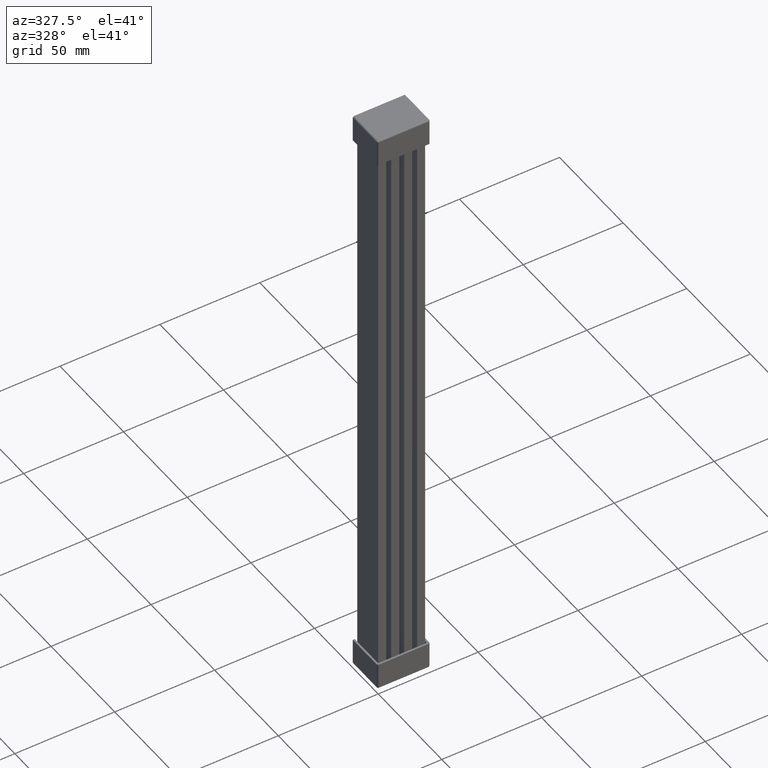
[diagram: clean part render]
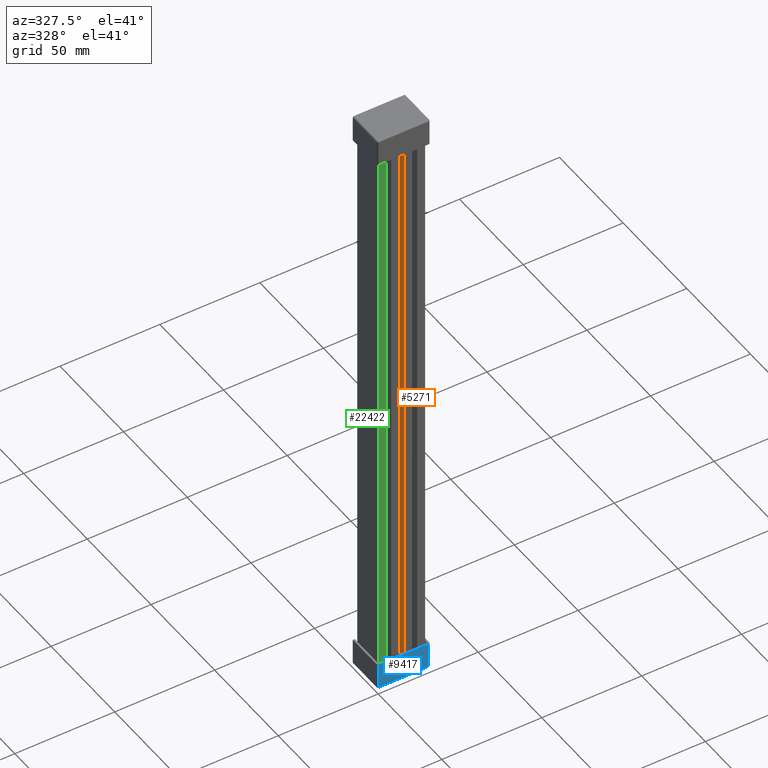
[diagram: same view with three faces highlighted in distinct colors, each labeled with its STEP entity id]
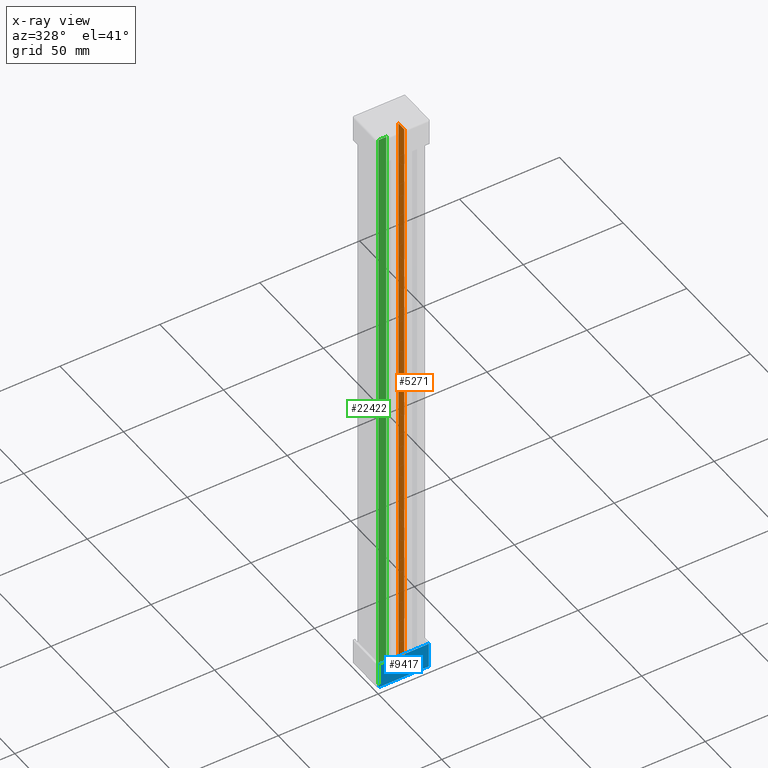
[diagram: x-ray of the same camera — body ghosted, the three highlighted faces saturated]
A machine part, auxiliary view with three faces highlighted in distinct colors.
The next image is the same camera in x-ray (body ghosted, the three faces saturated) — at least one of them is partly hidden behind the body in this view.
Their STEP definitions:

[orange] entity #5271 — the highlighted planar face has unit normal (-1, 0, 0).
#5271 = ADVANCED_FACE ( 'NONE', ( #18096 ), #18097, .T. ) ;
#5560 = EDGE_CURVE ( 'NONE', #29488, #29542, #8106, .T. ) ;
#5574 = EDGE_CURVE ( 'NONE', #29510, #22020, #8161, .T. ) ;
#5577 = EDGE_CURVE ( 'NONE', #29510, #29542, #8091, .T. ) ;
#5578 = EDGE_CURVE ( 'NONE', #29488, #22020, #8150, .T. ) ;
#8080 = CARTESIAN_POINT ( 'NONE',  ( 13.00000000000001100, 4.500000000000000900, 306.0000000000000000 ) ) ;
#8084 = DIRECTION ( 'NONE',  ( -0.0000000000000000000, -0.0000000000000000000, -1.000000000000000000 ) ) ;
#8091 = LINE ( 'NONE', #8124, #32924 ) ;
#8106 = LINE ( 'NONE', #8080, #32898 ) ;
#8124 = CARTESIAN_POINT ( 'NONE',  ( 13.00000000000001100, -17.62393693064634100, 4.114694696013197900E-012 ) ) ;
#8125 = CARTESIAN_POINT ( 'NONE',  ( 13.00000000000001100, -17.62393693064634100, 303.9999999999959100 ) ) ;
#8133 = CARTESIAN_POINT ( 'NONE',  ( 13.00000000000001100, 0.0000000000000000000, 306.0000000000000000 ) ) ;
#8145 = DIRECTION ( 'NONE',  ( 0.0000000000000000000, -0.0000000000000000000, 1.000000000000000000 ) ) ;
#8148 = DIRECTION ( 'NONE',  ( 0.0000000000000000000, 1.000000000000000000, -0.0000000000000000000 ) ) ;
#8150 = LINE ( 'NONE', #8125, #32952 ) ;
#8157 = DIRECTION ( 'NONE',  ( -0.0000000000000000000, -1.000000000000000000, -0.0000000000000000000 ) ) ;
#8161 = LINE ( 'NONE', #8133, #32970 ) ;
#18096 = FACE_OUTER_BOUND ( 'NONE', #30960, .T. ) ;
#18097 = PLANE ( 'NONE',  #33783 ) ;
#18099 = CARTESIAN_POINT ( 'NONE',  ( 13.00000000000001100, -14.22575591090892800, 306.0000000000000000 ) ) ;
#18189 = DIRECTION ( 'NONE',  ( 0.0000000000000000000, 0.0000000000000000000, 1.000000000000000000 ) ) ;
#18196 = DIRECTION ( 'NONE',  ( -1.000000000000000000, 0.0000000000000000000, 0.0000000000000000000 ) ) ;
#22020 = VERTEX_POINT ( 'NONE', #28335 ) ;
#24184 = ORIENTED_EDGE ( 'NONE', *, *, #5577, .F. ) ;
#24197 = ORIENTED_EDGE ( 'NONE', *, *, #5578, .F. ) ;
#24239 = ORIENTED_EDGE ( 'NONE', *, *, #5560, .T. ) ;
#24263 = ORIENTED_EDGE ( 'NONE', *, *, #5574, .T. ) ;
#26009 = CARTESIAN_POINT ( 'NONE',  ( 13.00000000000001100, 4.500000000000003600, 303.9999999999972100 ) ) ;
#26017 = CARTESIAN_POINT ( 'NONE',  ( 13.00000000000001100, 0.0000000000000000000, 4.537990353819468000E-012 ) ) ;
#26082 = CARTESIAN_POINT ( 'NONE',  ( 13.00000000000001100, 4.500000000000000900, 4.112404861046491100E-012 ) ) ;
#28335 = CARTESIAN_POINT ( 'NONE',  ( 13.00000000000001100, 0.0000000000000000000, 303.9999999999959100 ) ) ;
#29488 = VERTEX_POINT ( 'NONE', #26009 ) ;
#29510 = VERTEX_POINT ( 'NONE', #26017 ) ;
#29542 = VERTEX_POINT ( 'NONE', #26082 ) ;
#30960 = EDGE_LOOP ( 'NONE', ( #24239, #24184, #24263, #24197 ) ) ;
#32898 = VECTOR ( 'NONE', #8084, 1000.000000000000000 ) ;
#32924 = VECTOR ( 'NONE', #8148, 1000.000000000000000 ) ;
#32952 = VECTOR ( 'NONE', #8157, 1000.000000000000000 ) ;
#32970 = VECTOR ( 'NONE', #8145, 1000.000000000000000 ) ;
#33783 = AXIS2_PLACEMENT_3D ( 'NONE', #18099, #18196, #18189 ) ;

[blue] entity #9417 — the highlighted planar face has unit normal (0, 1, -0).
#4487 = AXIS2_PLACEMENT_3D ( 'NONE', #28402, #28388, #28390 ) ;
#6032 = EDGE_CURVE ( 'NONE', #30578, #30585, #10622, .T. ) ;
#6079 = EDGE_CURVE ( 'NONE', #30568, #30578, #19315, .T. ) ;
#6086 = EDGE_CURVE ( 'NONE', #30585, #30605, #19363, .T. ) ;
#6109 = EDGE_CURVE ( 'NONE', #30605, #30568, #19594, .T. ) ;
#9417 = ADVANCED_FACE ( 'NONE', ( #28386 ), #28322, .F. ) ;
#10596 = CARTESIAN_POINT ( 'NONE',  ( 11.75000000020078900, -1.700000000000000200, 12.30000000000369700 ) ) ;
#10622 = LINE ( 'NONE', #10596, #33422 ) ;
#10632 = DIRECTION ( 'NONE',  ( 1.000000000000000000, 0.0000000000000000000, 3.163580508669383600E-013 ) ) ;
#19251 = DIRECTION ( 'NONE',  ( -3.163580508669383600E-013, -0.0000000000000000000, 1.000000000000000000 ) ) ;
#19315 = LINE ( 'NONE', #19325, #33482 ) ;
#19325 = CARTESIAN_POINT ( 'NONE',  ( -0.6999999997991386300, -1.699999999999951500, 12.29999999999981100 ) ) ;
#19363 = LINE ( 'NONE', #19395, #33470 ) ;
#19395 = CARTESIAN_POINT ( 'NONE',  ( 24.20000000020077700, -1.700000000000000200, 12.30000000000763900 ) ) ;
#19430 = DIRECTION ( 'NONE',  ( 3.163580508669383600E-013, 0.0000000000000000000, -1.000000000000000000 ) ) ;
#19580 = DIRECTION ( 'NONE',  ( -1.000000000000000000, 0.0000000000000000000, -3.163580508669383600E-013 ) ) ;
#19586 = CARTESIAN_POINT ( 'NONE',  ( 11.75000000020476400, -1.700000000000000200, -0.2499999999962506700 ) ) ;
#19594 = LINE ( 'NONE', #19586, #33523 ) ;
#24851 = CARTESIAN_POINT ( 'NONE',  ( 24.20000000020441200, -1.700000000000000200, -0.2499999999923119800 ) ) ;
#24867 = CARTESIAN_POINT ( 'NONE',  ( -0.6999999997951682500, -1.699999999999975800, -0.2500000000001840700 ) ) ;
#24869 = CARTESIAN_POINT ( 'NONE',  ( 24.20000000020077700, -1.700000000000000200, 12.30000000000765500 ) ) ;
#24891 = CARTESIAN_POINT ( 'NONE',  ( -0.6999999997991468400, -1.699999999999988000, 12.29999999999978600 ) ) ;
#28322 = PLANE ( 'NONE',  #4487 ) ;
#28386 = FACE_OUTER_BOUND ( 'NONE', #31160, .T. ) ;
#28388 = DIRECTION ( 'NONE',  ( 0.0000000000000000000, 1.000000000000000000, -0.0000000000000000000 ) ) ;
#28390 = DIRECTION ( 'NONE',  ( 0.0000000000000000000, 0.0000000000000000000, 1.000000000000000000 ) ) ;
#28402 = CARTESIAN_POINT ( 'NONE',  ( 11.75000000020078900, -1.700000000000000200, 12.30000000000369700 ) ) ;
#30568 = VERTEX_POINT ( 'NONE', #24867 ) ;
#30578 = VERTEX_POINT ( 'NONE', #24891 ) ;
#30585 = VERTEX_POINT ( 'NONE', #24869 ) ;
#30605 = VERTEX_POINT ( 'NONE', #24851 ) ;
#30666 = ORIENTED_EDGE ( 'NONE', *, *, #6086, .F. ) ;
#30679 = ORIENTED_EDGE ( 'NONE', *, *, #6109, .F. ) ;
#30698 = ORIENTED_EDGE ( 'NONE', *, *, #6079, .F. ) ;
#30706 = ORIENTED_EDGE ( 'NONE', *, *, #6032, .F. ) ;
#31160 = EDGE_LOOP ( 'NONE', ( #30706, #30698, #30679, #30666 ) ) ;
#33422 = VECTOR ( 'NONE', #10632, 1000.000000000000000 ) ;
#33470 = VECTOR ( 'NONE', #19430, 1000.000000000000000 ) ;
#33482 = VECTOR ( 'NONE', #19251, 1000.000000000000000 ) ;
#33523 = VECTOR ( 'NONE', #19580, 1000.000000000000000 ) ;

[green] entity #22422 — the highlighted planar face has unit normal (0, 1, 0).
#4723 = AXIS2_PLACEMENT_3D ( 'NONE', #25325, #25330, #25376 ) ;
#5748 = EDGE_CURVE ( 'NONE', #30415, #30439, #33121, .T. ) ;
#5754 = EDGE_CURVE ( 'NONE', #30480, #30439, #9723, .T. ) ;
#5757 = EDGE_CURVE ( 'NONE', #30428, #30415, #9728, .T. ) ;
#5760 = EDGE_CURVE ( 'NONE', #30406, #30407, #9731, .T. ) ;
#5763 = EDGE_CURVE ( 'NONE', #30407, #30428, #9752, .T. ) ;
#5800 = EDGE_CURVE ( 'NONE', #30480, #30406, #33195, .T. ) ;
#9686 = DIRECTION ( 'NONE',  ( 0.0000000000000000000, 0.0000000000000000000, -1.000000000000000000 ) ) ;
#9689 = CARTESIAN_POINT ( 'NONE',  ( 0.0000000000000000000, 0.0000000000000000000, 306.0000000000000000 ) ) ;
#9705 = CARTESIAN_POINT ( 'NONE',  ( 0.05000000020459298400, 0.0000000000000000000, 0.5000000000000559600 ) ) ;
#9723 = LINE ( 'NONE', #9689, #33114 ) ;
#9726 = DIRECTION ( 'NONE',  ( 0.0000000000000000000, 0.0000000000000000000, -1.000000000000000000 ) ) ;
#9728 = LINE ( 'NONE', #9755, #33148 ) ;
#9729 = DIRECTION ( 'NONE',  ( -0.0000000000000000000, 1.000000000000000000, -0.0000000000000000000 ) ) ;
#9731 = LINE ( 'NONE', #9739, #33160 ) ;
#9739 = CARTESIAN_POINT ( 'NONE',  ( 11.74999999999998400, 0.0000000000000000000, 304.0000000000000000 ) ) ;
#9749 = DIRECTION ( 'NONE',  ( -1.000000000000000000, -0.0000000000000000000, 0.0000000000000000000 ) ) ;
#9752 = LINE ( 'NONE', #9763, #33163 ) ;
#9755 = CARTESIAN_POINT ( 'NONE',  ( 11.74999999999998400, 0.0000000000000000000, 1.276756478318930000E-012 ) ) ;
#9761 = DIRECTION ( 'NONE',  ( -0.0000000000000000000, 0.0000000000000000000, -1.000000000000000000 ) ) ;
#9763 = CARTESIAN_POINT ( 'NONE',  ( 3.999999999999892500, 0.0000000000000000000, 306.0000000000000000 ) ) ;
#9769 = DIRECTION ( 'NONE',  ( 1.000000000000000000, 0.0000000000000000000, -0.0000000000000000000 ) ) ;
#9831 = DIRECTION ( 'NONE',  ( -0.0000000000000000000, 1.000000000000000000, -0.0000000000000000000 ) ) ;
#9832 = DIRECTION ( 'NONE',  ( 1.421660098671616400E-014, 0.0000000000000000000, -1.000000000000000000 ) ) ;
#9869 = CARTESIAN_POINT ( 'NONE',  ( 0.05000000020459298400, 0.0000000000000000000, 303.4999999999999400 ) ) ;
#22422 = ADVANCED_FACE ( 'NONE', ( #25363 ), #25333, .F. ) ;
#22876 = ORIENTED_EDGE ( 'NONE', *, *, #5757, .F. ) ;
#22891 = ORIENTED_EDGE ( 'NONE', *, *, #5748, .F. ) ;
#22908 = ORIENTED_EDGE ( 'NONE', *, *, #5800, .F. ) ;
#22911 = ORIENTED_EDGE ( 'NONE', *, *, #5763, .F. ) ;
#22912 = ORIENTED_EDGE ( 'NONE', *, *, #5754, .T. ) ;
#22920 = ORIENTED_EDGE ( 'NONE', *, *, #5760, .F. ) ;
#24737 = CARTESIAN_POINT ( 'NONE',  ( 0.0000000000000000000, 0.0000000000000000000, 0.002506281467307732800 ) ) ;
#24748 = CARTESIAN_POINT ( 'NONE',  ( 0.05000000020459298400, 0.0000000000000000000, 6.663506552095910300E-013 ) ) ;
#24758 = CARTESIAN_POINT ( 'NONE',  ( 3.999999999999892500, 0.0000000000000000000, 1.273661731616191600E-012 ) ) ;
#24825 = CARTESIAN_POINT ( 'NONE',  ( 0.0000000000000000000, 0.0000000000000000000, 303.9974937185326700 ) ) ;
#25045 = CARTESIAN_POINT ( 'NONE',  ( 3.999999999999892500, 0.0000000000000000000, 303.9999999999993700 ) ) ;
#25097 = CARTESIAN_POINT ( 'NONE',  ( 0.05000000020467106100, 0.0000000000000000000, 303.9999999999999400 ) ) ;
#25325 = CARTESIAN_POINT ( 'NONE',  ( 11.74999999999998400, 0.0000000000000000000, 306.0000000000000000 ) ) ;
#25330 = DIRECTION ( 'NONE',  ( 0.0000000000000000000, 1.000000000000000000, 0.0000000000000000000 ) ) ;
#25333 = PLANE ( 'NONE',  #4723 ) ;
#25363 = FACE_OUTER_BOUND ( 'NONE', #31035, .T. ) ;
#25376 = DIRECTION ( 'NONE',  ( 0.0000000000000000000, -0.0000000000000000000, 1.000000000000000000 ) ) ;
#30406 = VERTEX_POINT ( 'NONE', #25097 ) ;
#30407 = VERTEX_POINT ( 'NONE', #25045 ) ;
#30415 = VERTEX_POINT ( 'NONE', #24748 ) ;
#30428 = VERTEX_POINT ( 'NONE', #24758 ) ;
#30439 = VERTEX_POINT ( 'NONE', #24737 ) ;
#30480 = VERTEX_POINT ( 'NONE', #24825 ) ;
#31035 = EDGE_LOOP ( 'NONE', ( #22912, #22891, #22876, #22911, #22920, #22908 ) ) ;
#33114 = VECTOR ( 'NONE', #9726, 1000.000000000000000 ) ;
#33121 = CIRCLE ( 'NONE', #33164, 0.5000000000000000000 ) ;
#33148 = VECTOR ( 'NONE', #9749, 1000.000000000000000 ) ;
#33160 = VECTOR ( 'NONE', #9769, 1000.000000000000000 ) ;
#33163 = VECTOR ( 'NONE', #9761, 1000.000000000000000 ) ;
#33164 = AXIS2_PLACEMENT_3D ( 'NONE', #9705, #9729, #9686 ) ;
#33179 = AXIS2_PLACEMENT_3D ( 'NONE', #9869, #9831, #9832 ) ;
#33195 = CIRCLE ( 'NONE', #33179, 0.5000000000000004400 ) ;